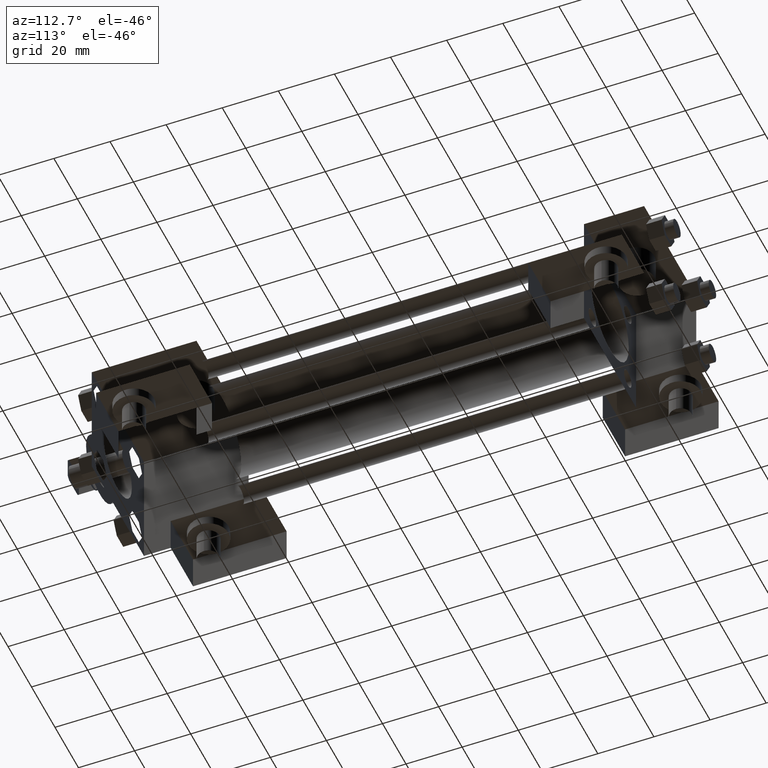
[diagram: clean part render]
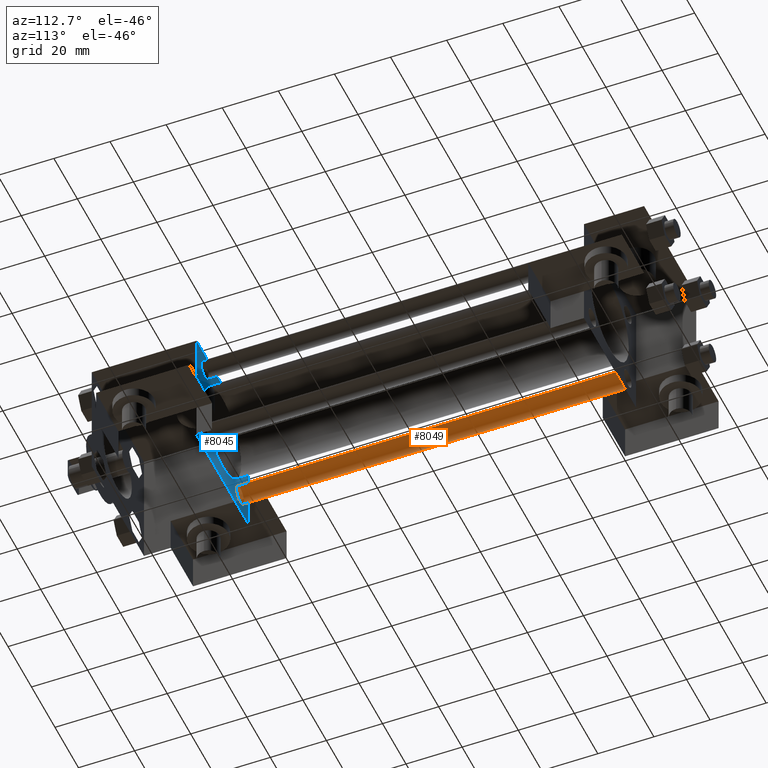
[diagram: same view with the hole feature highlighted: cylindrical wall and planar end face, labeled with their STEP entity ids]
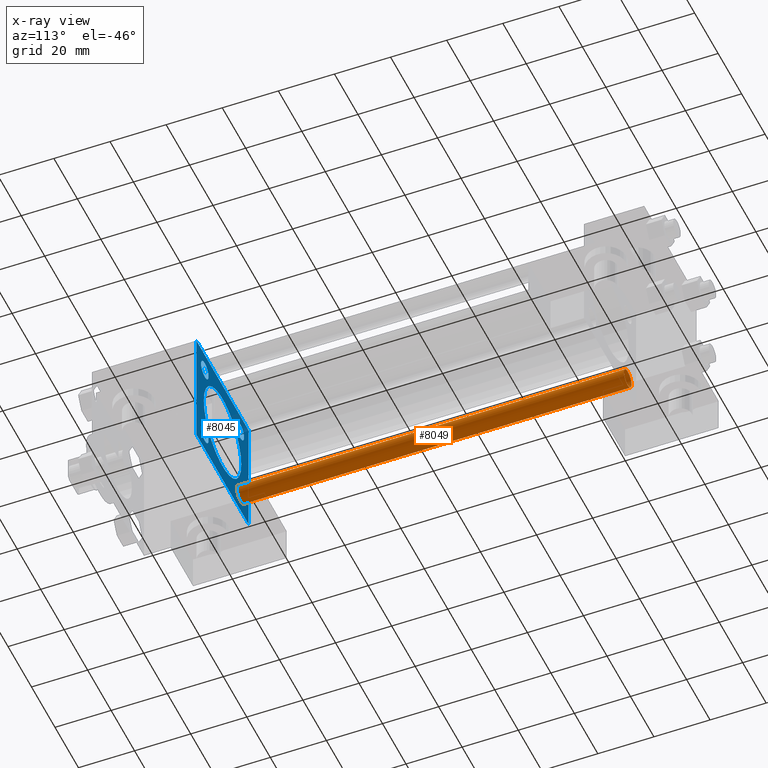
[diagram: x-ray of the same camera — body ghosted, the hole faces saturated]
A machine part, auxiliary view. The highlighted faces form one hole feature of diameter 6.35 mm: the cylindrical wall (entity #8049, orange) and its adjacent planar end face (entity #8045, blue) — they share a circular edge in the B-rep.
The next image is the same camera in x-ray (body ghosted, the hole faces saturated) — the bore reads through the body.
Wall:
#1242=EDGE_CURVE('',#1248,#1248,#1243,.T.);
#1243=CIRCLE('',#1244,3.175000000E+000);
#1244=AXIS2_PLACEMENT_3D('',#1245,#1246,#1247);
#1245=CARTESIAN_POINT('',(-1.511300000E+001,5.318125000E+001,-1.511300000E+001));
#1246=DIRECTION('',(0.0E+000,1.0E+000,0.0E+000));
#1247=DIRECTION('',(1.0E+000,0.0E+000,0.0E+000));
#1248=VERTEX_POINT('',#1249);
#1249=CARTESIAN_POINT('',(-1.193800000E+001,5.318125000E+001,-1.511300000E+001));
#2089=FACE_OUTER_BOUND('',#2091,.T.);
#2090=FACE_BOUND('',#2092,.T.);
#2091=EDGE_LOOP('',(#2093));
#2092=EDGE_LOOP('',(#2094));
#2093=ORIENTED_EDGE('',*,*,#2138,.F.);
#2094=ORIENTED_EDGE('',*,*,#1242,.T.);
#2095=CYLINDRICAL_SURFACE('',#2096,3.175000000E+000);
#2096=AXIS2_PLACEMENT_3D('',#2097,#2098,#2099);
#2097=CARTESIAN_POINT('',(-1.511300000E+001,1.912937500E+002,-1.511300000E+001));
#2098=DIRECTION('',(0.0E+000,-1.0E+000,0.0E+000));
#2099=DIRECTION('',(0.0E+000,0.0E+000,-1.0E+000));
#2138=EDGE_CURVE('',#2144,#2144,#2139,.T.);
#2139=CIRCLE('',#2140,3.175000000E+000);
#2140=AXIS2_PLACEMENT_3D('',#2141,#2142,#2143);
#2141=CARTESIAN_POINT('',(-1.511300000E+001,1.912937500E+002,-1.511300000E+001));
#2142=DIRECTION('',(0.0E+000,1.0E+000,0.0E+000));
#2143=DIRECTION('',(1.0E+000,0.0E+000,0.0E+000));
#2144=VERTEX_POINT('',#2145);
#2145=CARTESIAN_POINT('',(-1.193800000E+001,1.912937500E+002,-1.511300000E+001));
#8049=ADVANCED_FACE('',(#2089,#2090),#2095,.T.);
End face:
#1161=EDGE_CURVE('',#1167,#1167,#1162,.T.);
#1162=CIRCLE('',#1163,3.175000000E+000);
#1163=AXIS2_PLACEMENT_3D('',#1164,#1165,#1166);
#1164=CARTESIAN_POINT('',(-1.511300000E+001,5.318125000E+001,1.511300000E+001));
#1165=DIRECTION('',(0.0E+000,1.0E+000,0.0E+000));
#1166=DIRECTION('',(1.0E+000,0.0E+000,0.0E+000));
#1167=VERTEX_POINT('',#1168);
#1168=CARTESIAN_POINT('',(-1.193800000E+001,5.318125000E+001,1.511300000E+001));
#1188=EDGE_CURVE('',#1194,#1194,#1189,.T.);
#1189=CIRCLE('',#1190,3.175000000E+000);
#1190=AXIS2_PLACEMENT_3D('',#1191,#1192,#1193);
#1191=CARTESIAN_POINT('',(1.511300000E+001,5.318125000E+001,-1.511300000E+001));
#1192=DIRECTION('',(0.0E+000,1.0E+000,0.0E+000));
#1193=DIRECTION('',(1.0E+000,0.0E+000,0.0E+000));
#1194=VERTEX_POINT('',#1195);
#1195=CARTESIAN_POINT('',(1.828800000E+001,5.318125000E+001,-1.511300000E+001));
#1215=EDGE_CURVE('',#1221,#1221,#1216,.T.);
#1216=CIRCLE('',#1217,3.175000000E+000);
#1217=AXIS2_PLACEMENT_3D('',#1218,#1219,#1220);
#1218=CARTESIAN_POINT('',(1.511300000E+001,5.318125000E+001,1.511300000E+001));
#1219=DIRECTION('',(0.0E+000,1.0E+000,0.0E+000));
#1220=DIRECTION('',(1.0E+000,0.0E+000,0.0E+000));
#1221=VERTEX_POINT('',#1222);
#1222=CARTESIAN_POINT('',(1.828800000E+001,5.318125000E+001,1.511300000E+001));
#1242=EDGE_CURVE('',#1248,#1248,#1243,.T.);
#1243=CIRCLE('',#1244,3.175000000E+000);
#1244=AXIS2_PLACEMENT_3D('',#1245,#1246,#1247);
#1245=CARTESIAN_POINT('',(-1.511300000E+001,5.318125000E+001,-1.511300000E+001));
#1246=DIRECTION('',(0.0E+000,1.0E+000,0.0E+000));
#1247=DIRECTION('',(1.0E+000,0.0E+000,0.0E+000));
#1248=VERTEX_POINT('',#1249);
#1249=CARTESIAN_POINT('',(-1.193800000E+001,5.318125000E+001,-1.511300000E+001));
#1250=EDGE_CURVE('',#1256,#1256,#1251,.T.);
#1251=CIRCLE('',#1252,1.593850000E+001);
#1252=AXIS2_PLACEMENT_3D('',#1253,#1254,#1255);
#1253=CARTESIAN_POINT('',(0.000000000E+000,5.318125000E+001,0.000000000E+000));
#1254=DIRECTION('',(0.0E+000,1.0E+000,0.0E+000));
#1255=DIRECTION('',(1.0E+000,0.0E+000,0.0E+000));
#1256=VERTEX_POINT('',#1257);
#1257=CARTESIAN_POINT('',(1.593850000E+001,5.318125000E+001,0.000000000E+000));
#1549=VERTEX_POINT('',#1551);
#1551=CARTESIAN_POINT('',(-2.222500000E+001,5.318125000E+001,-9.525000000E+000));
#1661=EDGE_CURVE('',#1549,#1666,#1662,.T.);
#1662=LINE('',#1663,#1664);
#1663=CARTESIAN_POINT('',(-2.222500000E+001,5.318125000E+001,2.222500000E+001));
#1664=VECTOR('',#1665,1.0E+000);
#1665=DIRECTION('',(0.0E+000,0.0E+000,-1.0E+000));
#1666=VERTEX_POINT('',#1667);
#1667=CARTESIAN_POINT('',(-2.222500000E+001,5.318125000E+001,-2.222500000E+001));
#1709=VERTEX_POINT('',#1710);
#1710=CARTESIAN_POINT('',(2.222500000E+001,5.318125000E+001,-9.525000000E+000));
#1811=VERTEX_POINT('',#1812);
#1812=CARTESIAN_POINT('',(2.222500000E+001,5.318125000E+001,-2.222500000E+001));
#1813=EDGE_CURVE('',#1811,#1709,#1814,.T.);
#1814=LINE('',#1815,#1816);
#1815=CARTESIAN_POINT('',(2.222500000E+001,5.318125000E+001,-2.222500000E+001));
#1816=VECTOR('',#1817,1.0E+000);
#1817=DIRECTION('',(0.0E+000,0.0E+000,1.0E+000));
#1853=VERTEX_POINT('',#1854);
#1854=CARTESIAN_POINT('',(-2.222500000E+001,5.318125000E+001,2.222500000E+001));
#1855=EDGE_CURVE('',#1853,#1549,#1662,.T.);
#1882=VERTEX_POINT('',#1883);
#1883=CARTESIAN_POINT('',(2.222500000E+001,5.318125000E+001,2.222500000E+001));
#1884=EDGE_CURVE('',#1882,#1853,#1885,.T.);
#1885=LINE('',#1886,#1887);
#1886=CARTESIAN_POINT('',(2.222500000E+001,5.318125000E+001,2.222500000E+001));
#1887=VECTOR('',#1888,1.0E+000);
#1888=DIRECTION('',(-1.0E+000,0.0E+000,0.0E+000));
#1905=EDGE_CURVE('',#1709,#1882,#1814,.T.);
#1951=EDGE_CURVE('',#1666,#1811,#1952,.T.);
#1952=LINE('',#1953,#1954);
#1953=CARTESIAN_POINT('',(-2.222500000E+001,5.318125000E+001,-2.222500000E+001));
#1954=VECTOR('',#1955,1.0E+000);
#1955=DIRECTION('',(1.0E+000,0.0E+000,0.0E+000));
#1961=FACE_OUTER_BOUND('',#1967,.T.);
#1962=FACE_BOUND('',#1968,.T.);
#1963=FACE_BOUND('',#1969,.T.);
#1964=FACE_BOUND('',#1970,.T.);
#1965=FACE_BOUND('',#1971,.T.);
#1966=FACE_BOUND('',#1972,.T.);
#1967=EDGE_LOOP('',(#1973));
#1968=EDGE_LOOP('',(#1974));
#1969=EDGE_LOOP('',(#1975,#1976,#1977,#1978,#1979,#1980));
#1970=EDGE_LOOP('',(#1981));
#1971=EDGE_LOOP('',(#1982));
#1972=EDGE_LOOP('',(#1983));
#1973=ORIENTED_EDGE('',*,*,#1242,.F.);
#1974=ORIENTED_EDGE('',*,*,#1188,.F.);
#1975=ORIENTED_EDGE('',*,*,#1951,.F.);
#1976=ORIENTED_EDGE('',*,*,#1661,.F.);
#1977=ORIENTED_EDGE('',*,*,#1855,.F.);
#1978=ORIENTED_EDGE('',*,*,#1884,.F.);
#1979=ORIENTED_EDGE('',*,*,#1905,.F.);
#1980=ORIENTED_EDGE('',*,*,#1813,.F.);
#1981=ORIENTED_EDGE('',*,*,#1161,.F.);
#1982=ORIENTED_EDGE('',*,*,#1215,.F.);
#1983=ORIENTED_EDGE('',*,*,#1250,.F.);
#1984=PLANE('',#1985);
#1985=AXIS2_PLACEMENT_3D('',#1986,#1987,#1988);
#1986=CARTESIAN_POINT('',(-2.222500000E+001,5.318125000E+001,-2.222500000E+001));
#1987=DIRECTION('',(0.0E+000,1.0E+000,0.0E+000));
#1988=DIRECTION('',(0.0E+000,0.0E+000,1.0E+000));
#8045=ADVANCED_FACE('',(#1961,#1962,#1963,#1964,#1965,#1966),#1984,.T.);